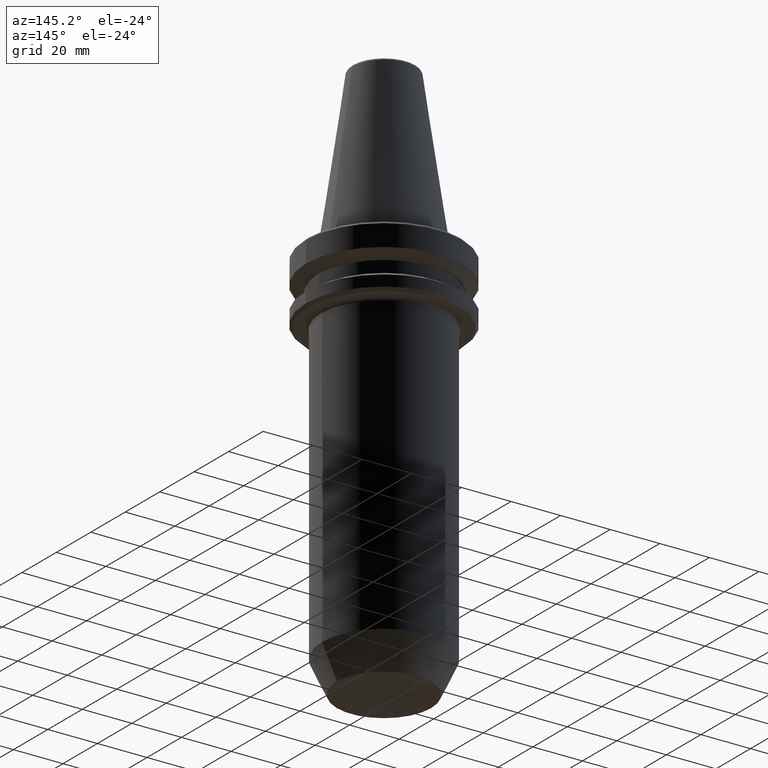
[diagram: clean part render]
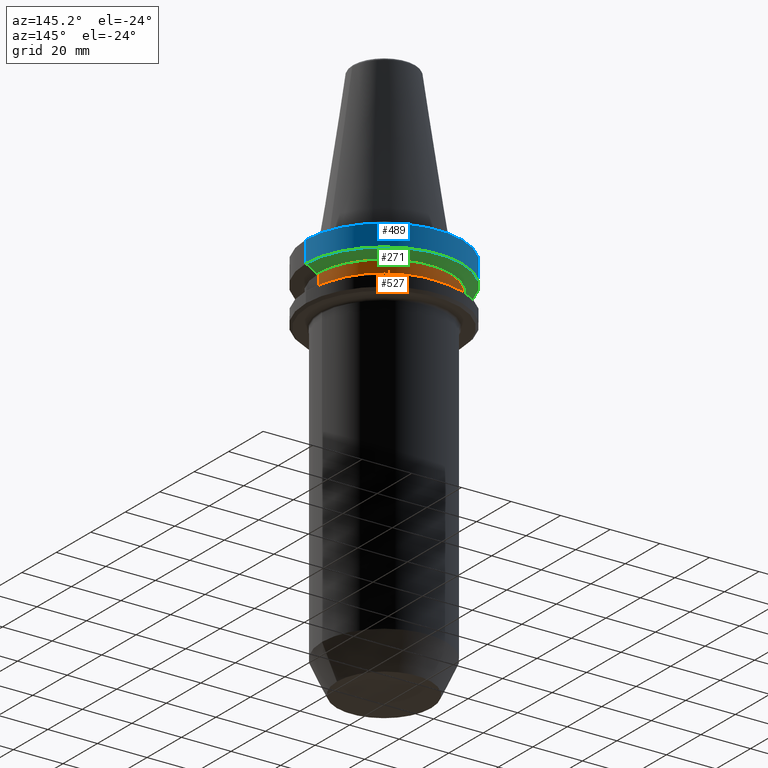
[diagram: same view with three faces highlighted in distinct colors, each labeled with its STEP entity id]
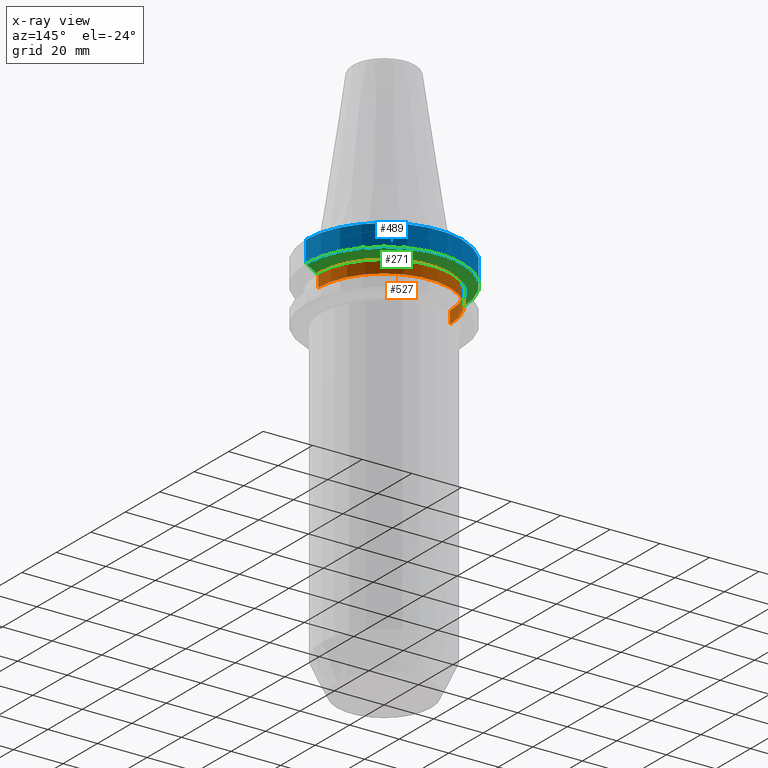
[diagram: x-ray of the same camera — body ghosted, the three highlighted faces saturated]
A machine part, auxiliary view with three faces highlighted in distinct colors.
The next image is the same camera in x-ray (body ghosted, the three faces saturated) — at least one of them is partly hidden behind the body in this view.
Their STEP definitions:

[orange] entity #527 — the highlighted cylindrical surface (partial cylindrical patch) has radius 26.5 mm, axis along (-0, -0, 1).
#9 = AXIS2_PLACEMENT_3D ( 'NONE', #155, #249, #676 ) ;
#32 = VECTOR ( 'NONE', #1019, 1000.000000000000000 ) ;
#68 = CARTESIAN_POINT ( 'NONE',  ( -26.50000000000007800, 3.245314017740495600E-015, -13.41128678834002700 ) ) ;
#116 = DIRECTION ( 'NONE',  ( -0.0000000000000000000, -0.0000000000000000000, 1.000000000000000000 ) ) ;
#155 = CARTESIAN_POINT ( 'NONE',  ( 0.0000000000000000000, 0.0000000000000000000, -13.41128678834002700 ) ) ;
#171 = AXIS2_PLACEMENT_3D ( 'NONE', #880, #1041, #864 ) ;
#211 = EDGE_CURVE ( 'NONE', #685, #606, #755, .T. ) ;
#218 = EDGE_CURVE ( 'NONE', #606, #444, #662, .T. ) ;
#249 = DIRECTION ( 'NONE',  ( -0.0000000000000000000, -0.0000000000000000000, 1.000000000000000000 ) ) ;
#267 = LINE ( 'NONE', #947, #32 ) ;
#306 = DIRECTION ( 'NONE',  ( -0.0000000000000000000, -0.0000000000000000000, 1.000000000000000000 ) ) ;
#309 = VECTOR ( 'NONE', #306, 1000.000000000000000 ) ;
#349 = AXIS2_PLACEMENT_3D ( 'NONE', #542, #116, #581 ) ;
#378 = VERTEX_POINT ( 'NONE', #615 ) ;
#398 = EDGE_LOOP ( 'NONE', ( #827, #1006, #486, #790 ) ) ;
#444 = VERTEX_POINT ( 'NONE', #68 ) ;
#486 = ORIENTED_EDGE ( 'NONE', *, *, #799, .F. ) ;
#518 = CIRCLE ( 'NONE', #9, 26.50000000000007800 ) ;
#527 = ADVANCED_FACE ( 'NONE', ( #934 ), #1005, .T. ) ;
#542 = CARTESIAN_POINT ( 'NONE',  ( 0.0000000000000000000, 0.0000000000000000000, -18.41128678844344800 ) ) ;
#581 = DIRECTION ( 'NONE',  ( 1.000000000000000000, 0.0000000000000000000, 0.0000000000000000000 ) ) ;
#604 = CARTESIAN_POINT ( 'NONE',  ( 26.50000000000007800, 0.0000000000000000000, -18.41128678844344800 ) ) ;
#606 = VERTEX_POINT ( 'NONE', #999 ) ;
#615 = CARTESIAN_POINT ( 'NONE',  ( 26.50000000000007800, 0.0000000000000000000, -13.41128678834002700 ) ) ;
#662 = LINE ( 'NONE', #882, #309 ) ;
#676 = DIRECTION ( 'NONE',  ( 1.000000000000000000, 0.0000000000000000000, 0.0000000000000000000 ) ) ;
#685 = VERTEX_POINT ( 'NONE', #604 ) ;
#755 = CIRCLE ( 'NONE', #349, 26.50000000000007800 ) ;
#790 = ORIENTED_EDGE ( 'NONE', *, *, #829, .F. ) ;
#799 = EDGE_CURVE ( 'NONE', #378, #444, #518, .T. ) ;
#827 = ORIENTED_EDGE ( 'NONE', *, *, #211, .T. ) ;
#829 = EDGE_CURVE ( 'NONE', #685, #378, #267, .T. ) ;
#864 = DIRECTION ( 'NONE',  ( 1.000000000000000000, 0.0000000000000000000, 0.0000000000000000000 ) ) ;
#880 = CARTESIAN_POINT ( 'NONE',  ( 0.0000000000000000000, 0.0000000000000000000, 82.74845858742440900 ) ) ;
#882 = CARTESIAN_POINT ( 'NONE',  ( -26.50000000000007800, 3.245314017740495600E-015, 82.74845858742440900 ) ) ;
#934 = FACE_OUTER_BOUND ( 'NONE', #398, .T. ) ;
#947 = CARTESIAN_POINT ( 'NONE',  ( 26.50000000000007800, 0.0000000000000000000, 82.74845858742440900 ) ) ;
#999 = CARTESIAN_POINT ( 'NONE',  ( -26.50000000000007800, 3.245314017740495600E-015, -18.41128678844344800 ) ) ;
#1005 = CYLINDRICAL_SURFACE ( 'NONE', #171, 26.50000000000007800 ) ;
#1006 = ORIENTED_EDGE ( 'NONE', *, *, #218, .T. ) ;
#1019 = DIRECTION ( 'NONE',  ( -0.0000000000000000000, -0.0000000000000000000, 1.000000000000000000 ) ) ;
#1041 = DIRECTION ( 'NONE',  ( -0.0000000000000000000, -0.0000000000000000000, 1.000000000000000000 ) ) ;

[blue] entity #489 — the highlighted cylindrical surface (partial cylindrical patch) has radius 31.5 mm, axis along (-0, -0, 1).
#39 = CYLINDRICAL_SURFACE ( 'NONE', #192, 31.49999999999986100 ) ;
#42 = FACE_OUTER_BOUND ( 'NONE', #303, .T. ) ;
#53 = CARTESIAN_POINT ( 'NONE',  ( 31.49999999999986100, 0.0000000000000000000, 82.74845858742440900 ) ) ;
#60 = LINE ( 'NONE', #404, #118 ) ;
#118 = VECTOR ( 'NONE', #618, 1000.000000000000000 ) ;
#121 = DIRECTION ( 'NONE',  ( -0.0000000000000000000, -0.0000000000000000000, 1.000000000000000000 ) ) ;
#122 = EDGE_CURVE ( 'NONE', #154, #965, #793, .T. ) ;
#145 = EDGE_CURVE ( 'NONE', #334, #777, #213, .T. ) ;
#154 = VERTEX_POINT ( 'NONE', #567 ) ;
#192 = AXIS2_PLACEMENT_3D ( 'NONE', #891, #432, #617 ) ;
#207 = VECTOR ( 'NONE', #246, 1000.000000000000000 ) ;
#213 = CIRCLE ( 'NONE', #366, 31.49999999999986100 ) ;
#246 = DIRECTION ( 'NONE',  ( -0.0000000000000000000, -0.0000000000000000000, 1.000000000000000000 ) ) ;
#303 = EDGE_LOOP ( 'NONE', ( #993, #804, #883, #658 ) ) ;
#334 = VERTEX_POINT ( 'NONE', #766 ) ;
#366 = AXIS2_PLACEMENT_3D ( 'NONE', #912, #663, #721 ) ;
#373 = AXIS2_PLACEMENT_3D ( 'NONE', #935, #121, #788 ) ;
#384 = LINE ( 'NONE', #53, #207 ) ;
#404 = CARTESIAN_POINT ( 'NONE',  ( -31.49999999999986100, 3.857637417314145300E-015, 82.74845858742440900 ) ) ;
#432 = DIRECTION ( 'NONE',  ( -0.0000000000000000000, -0.0000000000000000000, 1.000000000000000000 ) ) ;
#466 = CARTESIAN_POINT ( 'NONE',  ( -31.49999999999986100, 3.857637417314145300E-015, -10.91114478202370800 ) ) ;
#489 = ADVANCED_FACE ( 'NONE', ( #42 ), #39, .T. ) ;
#490 = EDGE_CURVE ( 'NONE', #777, #965, #60, .T. ) ;
#509 = CARTESIAN_POINT ( 'NONE',  ( -31.49999999999986100, 3.857637417314145300E-015, -2.311286788340083400 ) ) ;
#567 = CARTESIAN_POINT ( 'NONE',  ( 31.49999999999986100, 0.0000000000000000000, -2.311286788340083400 ) ) ;
#617 = DIRECTION ( 'NONE',  ( 1.000000000000000000, 0.0000000000000000000, 0.0000000000000000000 ) ) ;
#618 = DIRECTION ( 'NONE',  ( -0.0000000000000000000, -0.0000000000000000000, 1.000000000000000000 ) ) ;
#658 = ORIENTED_EDGE ( 'NONE', *, *, #810, .F. ) ;
#663 = DIRECTION ( 'NONE',  ( -0.0000000000000000000, -0.0000000000000000000, 1.000000000000000000 ) ) ;
#721 = DIRECTION ( 'NONE',  ( 1.000000000000000000, 0.0000000000000000000, 0.0000000000000000000 ) ) ;
#766 = CARTESIAN_POINT ( 'NONE',  ( 31.49999999999986100, 0.0000000000000000000, -10.91114478202370800 ) ) ;
#777 = VERTEX_POINT ( 'NONE', #466 ) ;
#788 = DIRECTION ( 'NONE',  ( 1.000000000000000000, 0.0000000000000000000, 0.0000000000000000000 ) ) ;
#793 = CIRCLE ( 'NONE', #373, 31.49999999999986100 ) ;
#804 = ORIENTED_EDGE ( 'NONE', *, *, #490, .T. ) ;
#810 = EDGE_CURVE ( 'NONE', #334, #154, #384, .T. ) ;
#883 = ORIENTED_EDGE ( 'NONE', *, *, #122, .F. ) ;
#891 = CARTESIAN_POINT ( 'NONE',  ( 0.0000000000000000000, 0.0000000000000000000, 82.74845858742440900 ) ) ;
#912 = CARTESIAN_POINT ( 'NONE',  ( 0.0000000000000000000, 0.0000000000000000000, -10.91114478202370800 ) ) ;
#935 = CARTESIAN_POINT ( 'NONE',  ( 0.0000000000000000000, 0.0000000000000000000, -2.311286788340083400 ) ) ;
#965 = VERTEX_POINT ( 'NONE', #509 ) ;
#993 = ORIENTED_EDGE ( 'NONE', *, *, #145, .T. ) ;

[green] entity #271 — the highlighted conical surface has half-angle 60 deg.
#4 = AXIS2_PLACEMENT_3D ( 'NONE', #951, #1022, #519 ) ;
#94 = CARTESIAN_POINT ( 'NONE',  ( 0.0000000000000000000, 0.0000000000000000000, -13.41128678834002700 ) ) ;
#125 = DIRECTION ( 'NONE',  ( -0.0000000000000000000, -0.0000000000000000000, 1.000000000000000000 ) ) ;
#145 = EDGE_CURVE ( 'NONE', #334, #777, #213, .T. ) ;
#213 = CIRCLE ( 'NONE', #366, 31.49999999999986100 ) ;
#271 = ADVANCED_FACE ( 'NONE', ( #724 ), #337, .T. ) ;
#317 = EDGE_CURVE ( 'NONE', #364, #777, #702, .T. ) ;
#323 = AXIS2_PLACEMENT_3D ( 'NONE', #94, #125, #719 ) ;
#334 = VERTEX_POINT ( 'NONE', #766 ) ;
#337 = CONICAL_SURFACE ( 'NONE', #323, 27.16962701892278200, 1.047197551196600300 ) ;
#343 = CARTESIAN_POINT ( 'NONE',  ( 27.16962701892278200, 0.0000000000000000000, -13.41128678834002700 ) ) ;
#364 = VERTEX_POINT ( 'NONE', #562 ) ;
#366 = AXIS2_PLACEMENT_3D ( 'NONE', #912, #663, #721 ) ;
#368 = DIRECTION ( 'NONE',  ( 0.8660254037844398200, 0.0000000000000000000, 0.4999999999999977200 ) ) ;
#413 = CIRCLE ( 'NONE', #4, 27.16962701892278200 ) ;
#466 = CARTESIAN_POINT ( 'NONE',  ( -31.49999999999986100, 3.857637417314145300E-015, -10.91114478202370800 ) ) ;
#493 = ORIENTED_EDGE ( 'NONE', *, *, #145, .F. ) ;
#519 = DIRECTION ( 'NONE',  ( 1.000000000000000000, 0.0000000000000000000, 0.0000000000000000000 ) ) ;
#541 = DIRECTION ( 'NONE',  ( -0.8660254037844398200, 1.060575238724908400E-016, 0.4999999999999977200 ) ) ;
#562 = CARTESIAN_POINT ( 'NONE',  ( -27.16962701892278200, 3.592478546794634700E-015, -13.41128678834002700 ) ) ;
#626 = CARTESIAN_POINT ( 'NONE',  ( 27.16962701892278200, 0.0000000000000000000, -13.41128678834002700 ) ) ;
#660 = ORIENTED_EDGE ( 'NONE', *, *, #803, .T. ) ;
#663 = DIRECTION ( 'NONE',  ( -0.0000000000000000000, -0.0000000000000000000, 1.000000000000000000 ) ) ;
#702 = LINE ( 'NONE', #828, #706 ) ;
#706 = VECTOR ( 'NONE', #541, 1000.000000000000100 ) ;
#711 = EDGE_CURVE ( 'NONE', #805, #334, #765, .T. ) ;
#719 = DIRECTION ( 'NONE',  ( 1.000000000000000000, 0.0000000000000000000, 0.0000000000000000000 ) ) ;
#721 = DIRECTION ( 'NONE',  ( 1.000000000000000000, 0.0000000000000000000, 0.0000000000000000000 ) ) ;
#724 = FACE_OUTER_BOUND ( 'NONE', #736, .T. ) ;
#736 = EDGE_LOOP ( 'NONE', ( #660, #1035, #493, #954 ) ) ;
#765 = LINE ( 'NONE', #626, #856 ) ;
#766 = CARTESIAN_POINT ( 'NONE',  ( 31.49999999999986100, 0.0000000000000000000, -10.91114478202370800 ) ) ;
#777 = VERTEX_POINT ( 'NONE', #466 ) ;
#803 = EDGE_CURVE ( 'NONE', #805, #364, #413, .T. ) ;
#805 = VERTEX_POINT ( 'NONE', #343 ) ;
#828 = CARTESIAN_POINT ( 'NONE',  ( -27.16962701892278200, 3.327319676275122900E-015, -13.41128678834002700 ) ) ;
#856 = VECTOR ( 'NONE', #368, 1000.000000000000100 ) ;
#912 = CARTESIAN_POINT ( 'NONE',  ( 0.0000000000000000000, 0.0000000000000000000, -10.91114478202370800 ) ) ;
#951 = CARTESIAN_POINT ( 'NONE',  ( 0.0000000000000000000, 0.0000000000000000000, -13.41128678834002700 ) ) ;
#954 = ORIENTED_EDGE ( 'NONE', *, *, #711, .F. ) ;
#1022 = DIRECTION ( 'NONE',  ( -0.0000000000000000000, -0.0000000000000000000, 1.000000000000000000 ) ) ;
#1035 = ORIENTED_EDGE ( 'NONE', *, *, #317, .T. ) ;